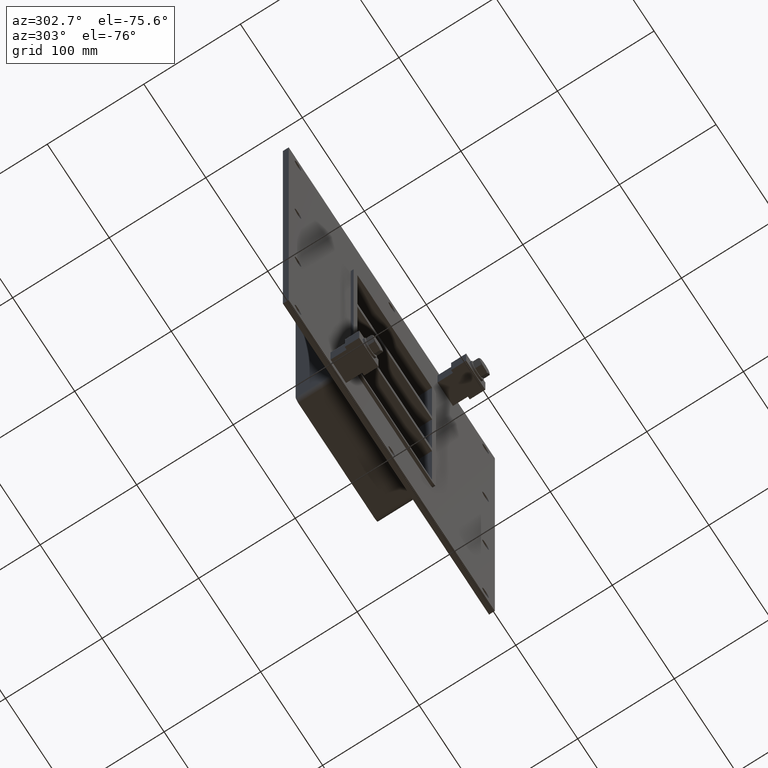
[diagram: clean part render]
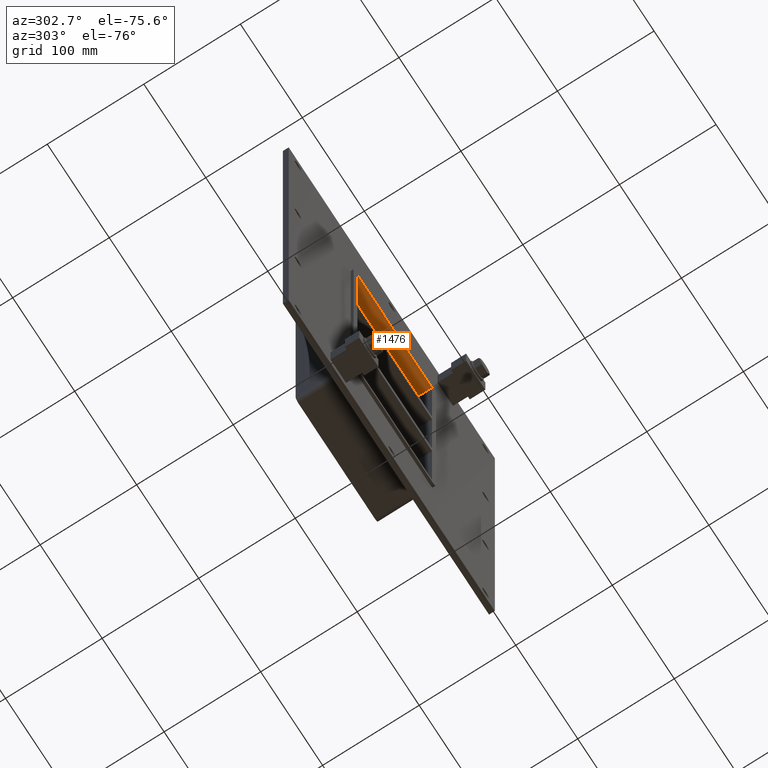
[diagram: same view with one face highlighted and labeled with its STEP entity id]
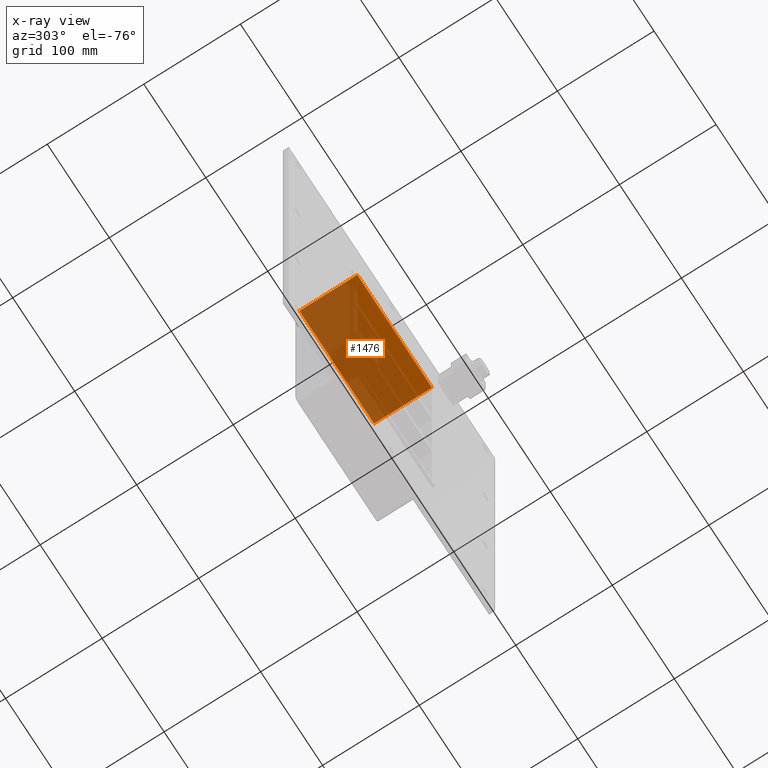
[diagram: x-ray of the same camera — body ghosted, the highlighted face saturated]
A machine part, auxiliary view. The second image highlights one B-rep face of the part: STEP entity #1476.
The next image is the same camera in x-ray: the body ghosted, the highlighted face saturated — about 78% of this face is hidden behind the body in this view.
In plain terms, the highlighted planar face has unit normal (0, 0, 1).
Its self-contained STEP definition (entity closure, byte-faithful):
#434=CARTESIAN_POINT('',(-60.25,57.0,161.5));
#435=VERTEX_POINT('',#434);
#442=CARTESIAN_POINT('',(-60.25,-3.0,161.5));
#443=VERTEX_POINT('',#442);
#444=CARTESIAN_POINT('',(-60.25,-3.0,161.50000000000003));
#445=DIRECTION('',(0.0,1.0,0.0));
#446=VECTOR('',#445,60.0);
#447=LINE('',#444,#446);
#448=EDGE_CURVE('',#443,#435,#447,.T.);
#496=CARTESIAN_POINT('',(60.25,-3.0,161.5));
#497=VERTEX_POINT('',#496);
#504=CARTESIAN_POINT('',(60.25,57.0,161.5));
#505=VERTEX_POINT('',#504);
#506=CARTESIAN_POINT('',(60.25,-3.0,161.50000000000003));
#507=DIRECTION('',(0.0,1.0,0.0));
#508=VECTOR('',#507,60.0);
#509=LINE('',#506,#508);
#510=EDGE_CURVE('',#497,#505,#509,.T.);
#1341=CARTESIAN_POINT('',(-60.25,-3.0,161.50000000000003));
#1342=DIRECTION('',(1.0,0.0,0.0));
#1343=VECTOR('',#1342,120.5);
#1344=LINE('',#1341,#1343);
#1345=EDGE_CURVE('',#443,#497,#1344,.T.);
#1460=CARTESIAN_POINT('',(-60.25,0.0,161.50000000000003));
#1461=DIRECTION('',(0.0,0.0,1.0));
#1462=DIRECTION('',(1.0,0.0,0.0));
#1463=AXIS2_PLACEMENT_3D('',#1460,#1461,#1462);
#1464=PLANE('',#1463);
#1465=ORIENTED_EDGE('',*,*,#448,.T.);
#1466=CARTESIAN_POINT('',(60.250000000000007,57.0,161.50000000000003));
#1467=DIRECTION('',(-1.0,0.0,0.0));
#1468=VECTOR('',#1467,120.5);
#1469=LINE('',#1466,#1468);
#1470=EDGE_CURVE('',#505,#435,#1469,.T.);
#1471=ORIENTED_EDGE('',*,*,#1470,.F.);
#1472=ORIENTED_EDGE('',*,*,#510,.F.);
#1473=ORIENTED_EDGE('',*,*,#1345,.F.);
#1474=EDGE_LOOP('',(#1465,#1471,#1472,#1473));
#1475=FACE_OUTER_BOUND('',#1474,.T.);
#1476=ADVANCED_FACE('',(#1475),#1464,.F.);